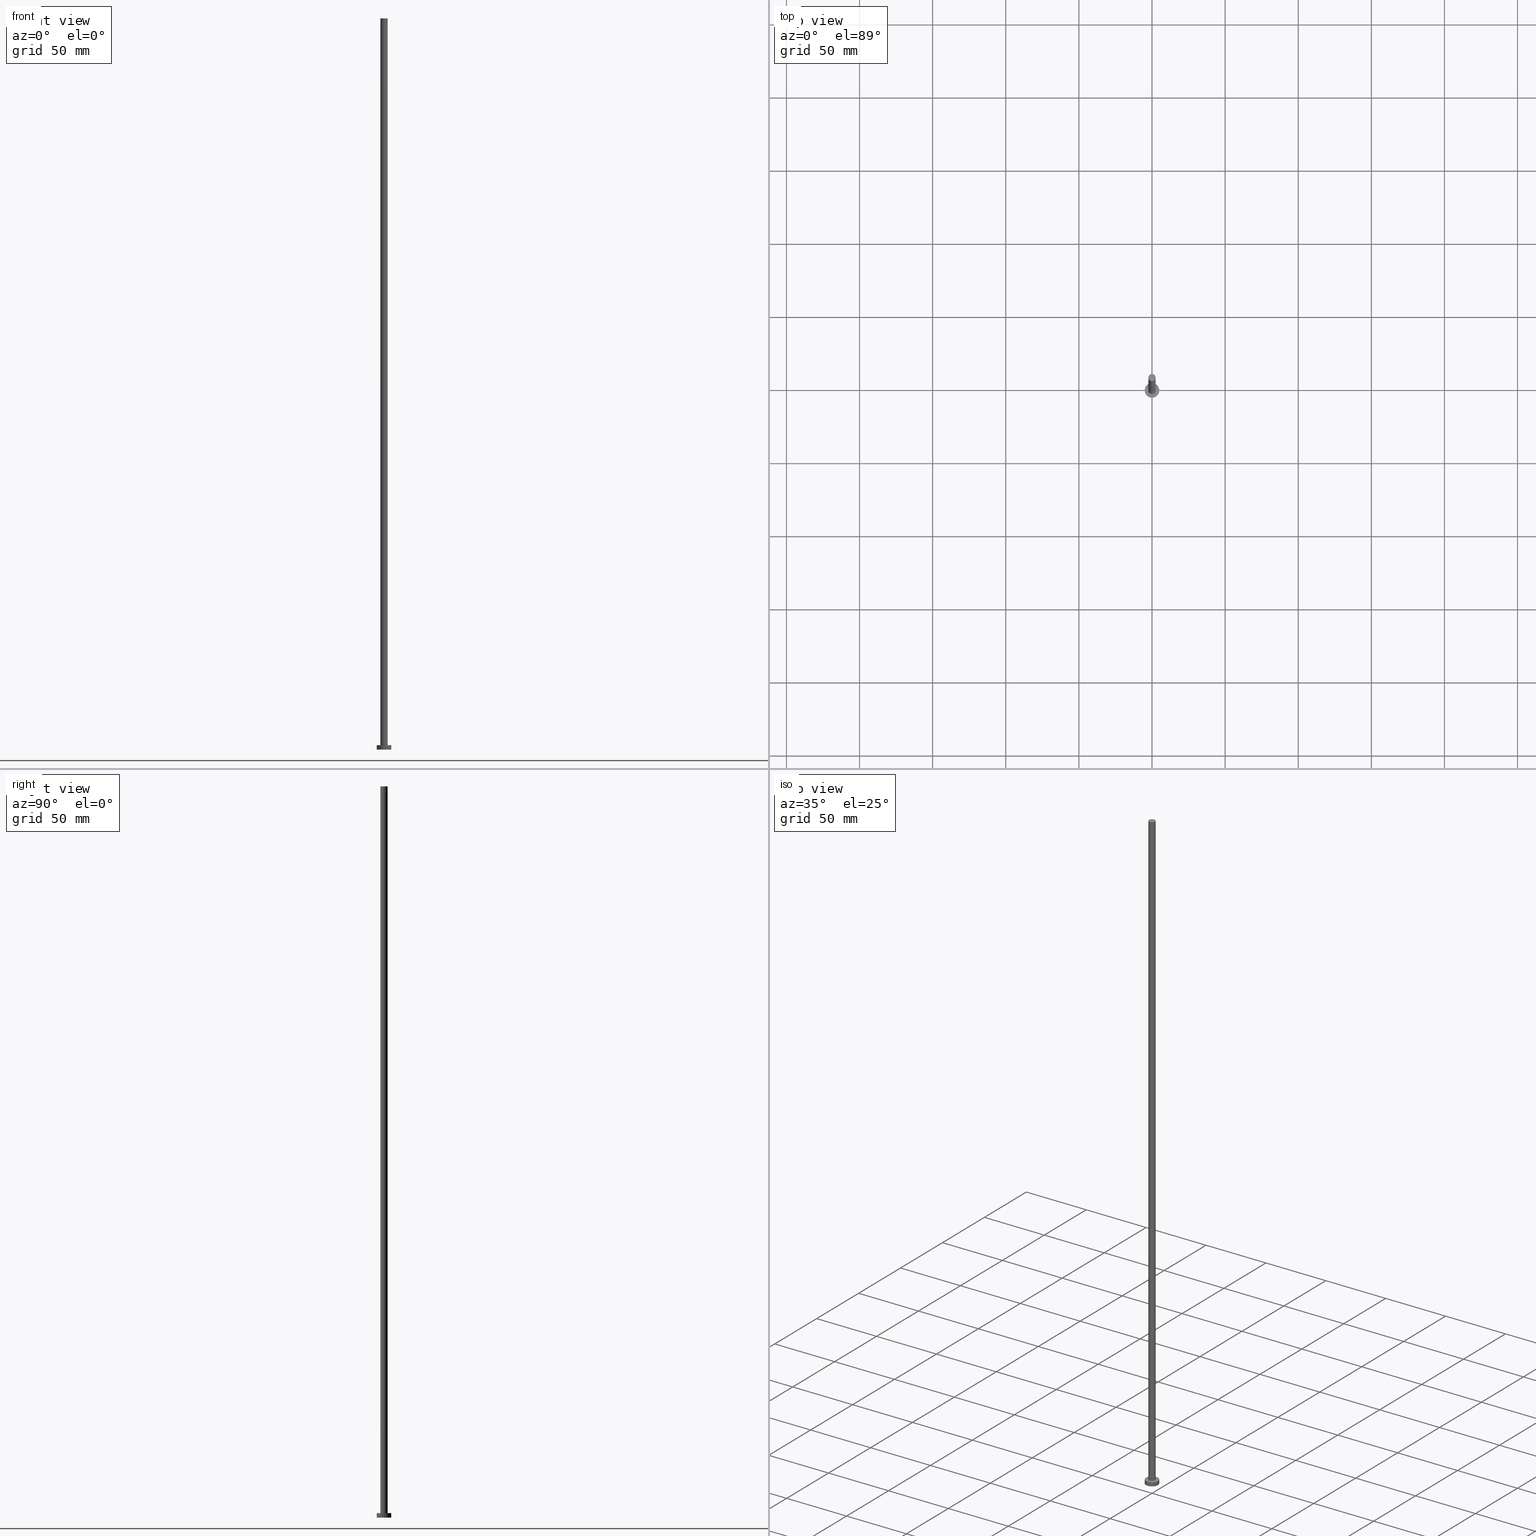
[diagram: canonical four-view strip — front | top / right | iso, engineering-drawing reading convention]
A machine part, canonical four-view strip (front | top / right | iso — engineering-drawing reading convention). The complete STEP part file that produces these views, byte-faithful:
ISO-10303-21;
HEADER;
FILE_DESCRIPTION (( 'STEP AP203' ),
    '1' );
FILE_NAME ('b8d8.STEP',
    '2023-02-12T12:29:18',
    ( '' ),
    ( '' ),
    'SwSTEP 2.0',
    'SolidWorks 2019',
    '' );
FILE_SCHEMA (( 'CONFIG_CONTROL_DESIGN' ));
ENDSEC;

DATA;
#1 = LOCAL_TIME ( 13, 29, 18.00000000000000000, #202 ) ;
#2 = ORIENTED_EDGE ( 'NONE', *, *, #69, .T. ) ;
#3 = CARTESIAN_POINT ( 'NONE',  ( 2.500000000000000000, 3.061616997868382648E-16, 3.000000000000000000 ) ) ;
#4 = CC_DESIGN_PERSON_AND_ORGANIZATION_ASSIGNMENT ( #14, #20, ( #76 ) ) ;
#5 = DIRECTION ( 'NONE',  ( -0.000000000000000000, -0.000000000000000000, -1.000000000000000000 ) ) ;
#6 = COORDINATED_UNIVERSAL_TIME_OFFSET ( 1, 0, .AHEAD. ) ;
#7 = DIRECTION ( 'NONE',  ( -0.000000000000000000, -0.000000000000000000, -1.000000000000000000 ) ) ;
#8 = PERSON_AND_ORGANIZATION_ROLE ( 'creator' ) ;
#9 = CARTESIAN_POINT ( 'NONE',  ( 0.000000000000000000, 0.000000000000000000, 0.000000000000000000 ) ) ;
#10 = CIRCLE ( 'NONE', #118, 2.500000000000000000 ) ;
#11 = ORIENTED_EDGE ( 'NONE', *, *, #43, .T. ) ;
#12 = LOCAL_TIME ( 13, 29, 18.00000000000000000, #221 ) ;
#13 = EDGE_CURVE ( 'NONE', #55, #82, #72, .T. ) ;
#14 = PERSON_AND_ORGANIZATION ( #165, #77 ) ;
#15 = DIRECTION ( 'NONE',  ( 1.000000000000000000, 0.000000000000000000, 0.000000000000000000 ) ) ;
#16 = APPLICATION_PROTOCOL_DEFINITION ( 'international standard', 'config_control_design', 1994, #84 ) ;
#17 = ADVANCED_FACE ( 'NONE', ( #157 ), #120, .T. ) ;
#18 = PRODUCT_DEFINITION_SHAPE ( 'NONE', 'NONE',  #45 ) ;
#19 = CARTESIAN_POINT ( 'NONE',  ( 0.000000000000000000, 0.000000000000000000, 3.000000000000000000 ) ) ;
#20 = PERSON_AND_ORGANIZATION_ROLE ( 'design_owner' ) ;
#21 = CARTESIAN_POINT ( 'NONE',  ( 0.000000000000000000, 0.000000000000000000, 3.000000000000000000 ) ) ;
#22 = APPROVAL_PERSON_ORGANIZATION ( #50, #249, #26 ) ;
#23 = EDGE_CURVE ( 'NONE', #83, #245, #62, .T. ) ;
#24 = ORIENTED_EDGE ( 'NONE', *, *, #69, .F. ) ;
#25 = CARTESIAN_POINT ( 'NONE',  ( -2.500000000000000000, 0.000000000000000000, 500.0000000000000000 ) ) ;
#26 = APPROVAL_ROLE ( '' ) ;
#27 = LINE ( 'NONE', #182, #195 ) ;
#28 = DIRECTION ( 'NONE',  ( 0.000000000000000000, 0.000000000000000000, 1.000000000000000000 ) ) ;
#29 = MANIFOLD_SOLID_BREP ( 'P�idat vysunut�m3', #155 ) ;
#30 = PERSON_AND_ORGANIZATION ( #165, #77 ) ;
#31 = DESIGN_CONTEXT ( 'detailed design', #107, 'design' ) ;
#32 = PERSON_AND_ORGANIZATION_ROLE ( 'classification_officer' ) ;
#33 = EDGE_CURVE ( 'NONE', #143, #67, #10, .T. ) ;
#34 = ORIENTED_EDGE ( 'NONE', *, *, #151, .F. ) ;
#35 = DIRECTION ( 'NONE',  ( 1.000000000000000000, 0.000000000000000000, 0.000000000000000000 ) ) ;
#36 = ORIENTED_EDGE ( 'NONE', *, *, #23, .F. ) ;
#37 = ADVANCED_FACE ( 'NONE', ( #226 ), #57, .T. ) ;
#38 = CARTESIAN_POINT ( 'NONE',  ( 0.000000000000000000, 0.000000000000000000, 500.0000000000000000 ) ) ;
#39 = EDGE_LOOP ( 'NONE', ( #207, #196, #229, #11 ) ) ;
#40 = DIRECTION ( 'NONE',  ( 0.000000000000000000, 0.000000000000000000, 1.000000000000000000 ) ) ;
#41 = CYLINDRICAL_SURFACE ( 'NONE', #133, 2.500000000000000000 ) ;
#42 = CARTESIAN_POINT ( 'NONE',  ( 0.000000000000000000, 0.000000000000000000, 500.0000000000000000 ) ) ;
#43 = EDGE_CURVE ( 'NONE', #245, #83, #88, .T. ) ;
#44 = AXIS2_PLACEMENT_3D ( 'NONE', #166, #185, #241 ) ;
#45 = PRODUCT_DEFINITION ( 'NEZN�M�', '', #225, #31 ) ;
#46 = CIRCLE ( 'NONE', #228, 2.500000000000000000 ) ;
#47 = EDGE_LOOP ( 'NONE', ( #179, #215 ) ) ;
#48 = AXIS2_PLACEMENT_3D ( 'NONE', #9, #205, #198 ) ;
#49 = DATE_AND_TIME ( #206, #12 ) ;
#50 = PERSON_AND_ORGANIZATION ( #165, #77 ) ;
#51 = DIRECTION ( 'NONE',  ( 0.000000000000000000, 0.000000000000000000, 1.000000000000000000 ) ) ;
#52 = CARTESIAN_POINT ( 'NONE',  ( 0.000000000000000000, 0.000000000000000000, 3.000000000000000000 ) ) ;
#53 = DIRECTION ( 'NONE',  ( 1.000000000000000000, 0.000000000000000000, 0.000000000000000000 ) ) ;
#54 = CC_DESIGN_PERSON_AND_ORGANIZATION_ASSIGNMENT ( #156, #32, ( #113 ) ) ;
#55 = VERTEX_POINT ( 'NONE', #254 ) ;
#56 = DIRECTION ( 'NONE',  ( -0.000000000000000000, -0.000000000000000000, -1.000000000000000000 ) ) ;
#57 = CYLINDRICAL_SURFACE ( 'NONE', #213, 5.000000000000000000 ) ;
#58 = VERTEX_POINT ( 'NONE', #79 ) ;
#59 = DIRECTION ( 'NONE',  ( 1.000000000000000000, 0.000000000000000000, 0.000000000000000000 ) ) ;
#60 = CARTESIAN_POINT ( 'NONE',  ( -5.000000000000000000, 0.000000000000000000, 3.000000000000000000 ) ) ;
#61 = PRODUCT_RELATED_PRODUCT_CATEGORY ( 'detail', '', ( #76 ) ) ;
#62 = CIRCLE ( 'NONE', #132, 2.500000000000000000 ) ;
#63 = CIRCLE ( 'NONE', #240, 5.000000000000000000 ) ;
#64 = EDGE_CURVE ( 'NONE', #122, #58, #250, .T. ) ;
#65 = APPROVAL ( #111, 'NEUR�EN�' ) ;
#66 = VECTOR ( 'NONE', #7, 1000.000000000000000 ) ;
#67 = VERTEX_POINT ( 'NONE', #25 ) ;
#68 = AXIS2_PLACEMENT_3D ( 'NONE', #52, #5, #183 ) ;
#69 = EDGE_CURVE ( 'NONE', #82, #55, #63, .T. ) ;
#70 = PERSON_AND_ORGANIZATION_ROLE ( 'design_supplier' ) ;
#71 = DIRECTION ( 'NONE',  ( -0.000000000000000000, -0.000000000000000000, -1.000000000000000000 ) ) ;
#72 = CIRCLE ( 'NONE', #173, 5.000000000000000000 ) ;
#73 = CARTESIAN_POINT ( 'NONE',  ( 0.000000000000000000, 0.000000000000000000, 3.000000000000000000 ) ) ;
#74 = DIRECTION ( 'NONE',  ( 0.000000000000000000, 0.000000000000000000, 1.000000000000000000 ) ) ;
#75 = DIRECTION ( 'NONE',  ( -1.000000000000000000, 0.000000000000000000, 0.000000000000000000 ) ) ;
#76 = PRODUCT ( 'b8d8', 'b8d8', '', ( #248 ) ) ;
#77 = ORGANIZATION ( 'NEUR�EN�', 'NEUR�EN�', '' ) ;
#78 = PERSON_AND_ORGANIZATION ( #165, #77 ) ;
#79 = CARTESIAN_POINT ( 'NONE',  ( 5.000000000000000000, 6.123233995736766282E-16, 0.000000000000000000 ) ) ;
#80 = CARTESIAN_POINT ( 'NONE',  ( 0.000000000000000000, 0.000000000000000000, 0.000000000000000000 ) ) ;
#81 = LOCAL_TIME ( 13, 29, 18.00000000000000000, #6 ) ;
#82 = VERTEX_POINT ( 'NONE', #203 ) ;
#83 = VERTEX_POINT ( 'NONE', #3 ) ;
#84 = APPLICATION_CONTEXT ( 'configuration controlled 3d designs of mechanical parts and assemblies' ) ;
#85 = ADVANCED_FACE ( 'NONE', ( #237 ), #109, .T. ) ;
#86 = CALENDAR_DATE ( 2023, 12, 2 ) ;
#87 = FACE_OUTER_BOUND ( 'NONE', #189, .T. ) ;
#88 = CIRCLE ( 'NONE', #105, 2.500000000000000000 ) ;
#89 = CIRCLE ( 'NONE', #167, 5.000000000000000000 ) ;
#90 = PERSON_AND_ORGANIZATION ( #165, #77 ) ;
#91 = CARTESIAN_POINT ( 'NONE',  ( 0.000000000000000000, 0.000000000000000000, 3.000000000000000000 ) ) ;
#92 = APPROVAL_STATUS ( 'not_yet_approved' ) ;
#93 = PLANE ( 'NONE',  #197 ) ;
#94 = CC_DESIGN_APPROVAL ( #201, ( #45 ) ) ;
#95 = ORIENTED_EDGE ( 'NONE', *, *, #33, .F. ) ;
#96 = PLANE ( 'NONE',  #145 ) ;
#97 = DIRECTION ( 'NONE',  ( 1.000000000000000000, 0.000000000000000000, 0.000000000000000000 ) ) ;
#98 = DIRECTION ( 'NONE',  ( 0.000000000000000000, 0.000000000000000000, 1.000000000000000000 ) ) ;
#99 = ADVANCED_FACE ( 'NONE', ( #87 ), #115, .T. ) ;
#100 = DIRECTION ( 'NONE',  ( -0.000000000000000000, -0.000000000000000000, -1.000000000000000000 ) ) ;
#101 = APPLICATION_PROTOCOL_DEFINITION ( 'international standard', 'config_control_design', 1994, #107 ) ;
#102 = DIRECTION ( 'NONE',  ( 0.000000000000000000, 0.000000000000000000, 1.000000000000000000 ) ) ;
#103 = APPROVAL_ROLE ( '' ) ;
#104 = UNCERTAINTY_MEASURE_WITH_UNIT (LENGTH_MEASURE( 1.000000000000000082E-05 ), #128, 'distance_accuracy_value', 'NONE');
#105 = AXIS2_PLACEMENT_3D ( 'NONE', #21, #102, #177 ) ;
#106 = ORIENTED_EDGE ( 'NONE', *, *, #43, .F. ) ;
#107 = APPLICATION_CONTEXT ( 'configuration controlled 3d designs of mechanical parts and assemblies' ) ;
#108 = ORIENTED_EDGE ( 'NONE', *, *, #216, .T. ) ;
#109 = CYLINDRICAL_SURFACE ( 'NONE', #68, 5.000000000000000000 ) ;
#110 = CC_DESIGN_PERSON_AND_ORGANIZATION_ASSIGNMENT ( #204, #184, ( #225 ) ) ;
#111 = APPROVAL_STATUS ( 'not_yet_approved' ) ;
#112 = APPROVAL_PERSON_ORGANIZATION ( #78, #201, #103 ) ;
#113 = SECURITY_CLASSIFICATION ( '', '', #168 ) ;
#114 = APPROVAL_DATE_TIME ( #242, #249 ) ;
#115 = PLANE ( 'NONE',  #44 ) ;
#116 = ORIENTED_EDGE ( 'NONE', *, *, #13, .T. ) ;
#117 = DIRECTION ( 'NONE',  ( 1.000000000000000000, 0.000000000000000000, 0.000000000000000000 ) ) ;
#118 = AXIS2_PLACEMENT_3D ( 'NONE', #247, #158, #15 ) ;
#119 = VECTOR ( 'NONE', #56, 1000.000000000000000 ) ;
#120 = CYLINDRICAL_SURFACE ( 'NONE', #232, 2.500000000000000000 ) ;
#121 = ADVANCED_FACE ( 'NONE', ( #152 ), #93, .F. ) ;
#122 = VERTEX_POINT ( 'NONE', #219 ) ;
#123 = DIRECTION ( 'NONE',  ( -0.000000000000000000, -0.000000000000000000, -1.000000000000000000 ) ) ;
#124 = CC_DESIGN_DATE_AND_TIME_ASSIGNMENT ( #218, #171, ( #113 ) ) ;
#125 = CARTESIAN_POINT ( 'NONE',  ( 0.000000000000000000, 0.000000000000000000, 3.000000000000000000 ) ) ;
#126 = CALENDAR_DATE ( 2023, 12, 2 ) ;
#127 = ADVANCED_BREP_SHAPE_REPRESENTATION ( 'b8d8', ( #29, #235 ), #233 ) ;
#128 =( LENGTH_UNIT ( ) NAMED_UNIT ( * ) SI_UNIT ( .MILLI., .METRE. ) );
#129 = LOCAL_TIME ( 13, 29, 18.00000000000000000, #149 ) ;
#130 = VECTOR ( 'NONE', #230, 1000.000000000000000 ) ;
#131 = ORIENTED_EDGE ( 'NONE', *, *, #13, .F. ) ;
#132 = AXIS2_PLACEMENT_3D ( 'NONE', #19, #188, #97 ) ;
#133 = AXIS2_PLACEMENT_3D ( 'NONE', #38, #123, #175 ) ;
#134 = ORIENTED_EDGE ( 'NONE', *, *, #236, .T. ) ;
#135 = SHAPE_DEFINITION_REPRESENTATION ( #18, #127 ) ;
#136 = CARTESIAN_POINT ( 'NONE',  ( 2.500000000000000000, 3.061616997868382648E-16, 500.0000000000000000 ) ) ;
#137 = APPROVAL_DATE_TIME ( #49, #65 ) ;
#138 = CALENDAR_DATE ( 2023, 12, 2 ) ;
#139 = PERSON_AND_ORGANIZATION ( #165, #77 ) ;
#140 = CARTESIAN_POINT ( 'NONE',  ( 0.000000000000000000, 0.000000000000000000, 0.000000000000000000 ) ) ;
#141 = LINE ( 'NONE', #60, #130 ) ;
#142 = EDGE_CURVE ( 'NONE', #143, #83, #243, .T. ) ;
#143 = VERTEX_POINT ( 'NONE', #200 ) ;
#144 = FACE_BOUND ( 'NONE', #174, .T. ) ;
#145 = AXIS2_PLACEMENT_3D ( 'NONE', #231, #150, #252 ) ;
#146 = ORIENTED_EDGE ( 'NONE', *, *, #151, .T. ) ;
#147 = DIRECTION ( 'NONE',  ( 0.000000000000000000, 0.000000000000000000, 1.000000000000000000 ) ) ;
#148 = DIRECTION ( 'NONE',  ( 1.000000000000000000, 0.000000000000000000, 0.000000000000000000 ) ) ;
#149 = COORDINATED_UNIVERSAL_TIME_OFFSET ( 1, 0, .AHEAD. ) ;
#150 = DIRECTION ( 'NONE',  ( 0.000000000000000000, 0.000000000000000000, 1.000000000000000000 ) ) ;
#151 = EDGE_CURVE ( 'NONE', #55, #58, #27, .T. ) ;
#152 = FACE_OUTER_BOUND ( 'NONE', #47, .T. ) ;
#153 = APPROVAL_ROLE ( '' ) ;
#154 = APPROVAL_DATE_TIME ( #192, #201 ) ;
#155 = CLOSED_SHELL ( 'NONE', ( #17, #85, #37, #193, #121, #246, #99 ) ) ;
#156 = PERSON_AND_ORGANIZATION ( #165, #77 ) ;
#157 = FACE_OUTER_BOUND ( 'NONE', #159, .T. ) ;
#158 = DIRECTION ( 'NONE',  ( 0.000000000000000000, 0.000000000000000000, 1.000000000000000000 ) ) ;
#159 = EDGE_LOOP ( 'NONE', ( #95, #186, #209, #161 ) ) ;
#160 = DIRECTION ( 'NONE',  ( -1.000000000000000000, 0.000000000000000000, 0.000000000000000000 ) ) ;
#161 = ORIENTED_EDGE ( 'NONE', *, *, #162, .F. ) ;
#162 = EDGE_CURVE ( 'NONE', #67, #245, #172, .T. ) ;
#163 = CC_DESIGN_PERSON_AND_ORGANIZATION_ASSIGNMENT ( #30, #70, ( #225 ) ) ;
#164 = ORIENTED_EDGE ( 'NONE', *, *, #216, .F. ) ;
#165 = PERSON ( 'NEUR�EN�', 'NEUR�EN�', 'NEUR�EN�', ('NEUR�EN�'), ('NEUR�EN�'), ('NEUR�EN�') ) ;
#166 = CARTESIAN_POINT ( 'NONE',  ( 0.000000000000000000, 0.000000000000000000, 500.0000000000000000 ) ) ;
#167 = AXIS2_PLACEMENT_3D ( 'NONE', #212, #40, #59 ) ;
#168 = SECURITY_CLASSIFICATION_LEVEL ( 'unclassified' ) ;
#169 = DATE_TIME_ROLE ( 'creation_date' ) ;
#170 = DIRECTION ( 'NONE',  ( 1.000000000000000000, 0.000000000000000000, -0.000000000000000000 ) ) ;
#171 = DATE_TIME_ROLE ( 'classification_date' ) ;
#172 = LINE ( 'NONE', #244, #119 ) ;
#173 = AXIS2_PLACEMENT_3D ( 'NONE', #73, #74, #148 ) ;
#174 = EDGE_LOOP ( 'NONE', ( #106, #36 ) ) ;
#175 = DIRECTION ( 'NONE',  ( -1.000000000000000000, 0.000000000000000000, 0.000000000000000000 ) ) ;
#176 = EDGE_LOOP ( 'NONE', ( #2, #116 ) ) ;
#177 = DIRECTION ( 'NONE',  ( 1.000000000000000000, 0.000000000000000000, 0.000000000000000000 ) ) ;
#178 = ORIENTED_EDGE ( 'NONE', *, *, #199, .T. ) ;
#179 = ORIENTED_EDGE ( 'NONE', *, *, #64, .F. ) ;
#180 = ORIENTED_EDGE ( 'NONE', *, *, #64, .T. ) ;
#181 = DATE_AND_TIME ( #138, #187 ) ;
#182 = CARTESIAN_POINT ( 'NONE',  ( 5.000000000000000000, 6.123233995736766282E-16, 3.000000000000000000 ) ) ;
#183 = DIRECTION ( 'NONE',  ( -1.000000000000000000, 0.000000000000000000, 0.000000000000000000 ) ) ;
#184 = PERSON_AND_ORGANIZATION_ROLE ( 'creator' ) ;
#185 = DIRECTION ( 'NONE',  ( 0.000000000000000000, 0.000000000000000000, 1.000000000000000000 ) ) ;
#186 = ORIENTED_EDGE ( 'NONE', *, *, #142, .T. ) ;
#187 = LOCAL_TIME ( 13, 29, 18.00000000000000000, #239 ) ;
#188 = DIRECTION ( 'NONE',  ( 0.000000000000000000, 0.000000000000000000, 1.000000000000000000 ) ) ;
#189 = EDGE_LOOP ( 'NONE', ( #134, #191 ) ) ;
#190 =( NAMED_UNIT ( * ) SI_UNIT ( $, .STERADIAN. ) SOLID_ANGLE_UNIT ( ) );
#191 = ORIENTED_EDGE ( 'NONE', *, *, #33, .T. ) ;
#192 = DATE_AND_TIME ( #126, #129 ) ;
#193 = ADVANCED_FACE ( 'NONE', ( #144, #208 ), #96, .T. ) ;
#194 = CC_DESIGN_APPROVAL ( #65, ( #113 ) ) ;
#195 = VECTOR ( 'NONE', #71, 1000.000000000000000 ) ;
#196 = ORIENTED_EDGE ( 'NONE', *, *, #236, .F. ) ;
#197 = AXIS2_PLACEMENT_3D ( 'NONE', #140, #28, #170 ) ;
#198 = DIRECTION ( 'NONE',  ( 1.000000000000000000, 0.000000000000000000, 0.000000000000000000 ) ) ;
#199 = EDGE_CURVE ( 'NONE', #58, #122, #89, .T. ) ;
#200 = CARTESIAN_POINT ( 'NONE',  ( 2.500000000000000000, 3.061616997868382648E-16, 500.0000000000000000 ) ) ;
#201 = APPROVAL ( #211, 'NEUR�EN�' ) ;
#202 = COORDINATED_UNIVERSAL_TIME_OFFSET ( 1, 0, .AHEAD. ) ;
#203 = CARTESIAN_POINT ( 'NONE',  ( -5.000000000000000000, 0.000000000000000000, 3.000000000000000000 ) ) ;
#204 = PERSON_AND_ORGANIZATION ( #165, #77 ) ;
#205 = DIRECTION ( 'NONE',  ( 0.000000000000000000, 0.000000000000000000, 1.000000000000000000 ) ) ;
#206 = CALENDAR_DATE ( 2023, 12, 2 ) ;
#207 = ORIENTED_EDGE ( 'NONE', *, *, #142, .F. ) ;
#208 = FACE_OUTER_BOUND ( 'NONE', #176, .T. ) ;
#209 = ORIENTED_EDGE ( 'NONE', *, *, #23, .T. ) ;
#210 = DIRECTION ( 'NONE',  ( -0.000000000000000000, -0.000000000000000000, -1.000000000000000000 ) ) ;
#211 = APPROVAL_STATUS ( 'not_yet_approved' ) ;
#212 = CARTESIAN_POINT ( 'NONE',  ( 0.000000000000000000, 0.000000000000000000, 0.000000000000000000 ) ) ;
#213 = AXIS2_PLACEMENT_3D ( 'NONE', #125, #100, #75 ) ;
#214 = CC_DESIGN_APPROVAL ( #249, ( #225 ) ) ;
#215 = ORIENTED_EDGE ( 'NONE', *, *, #199, .F. ) ;
#216 = EDGE_CURVE ( 'NONE', #82, #122, #141, .T. ) ;
#217 = APPROVAL_PERSON_ORGANIZATION ( #90, #65, #153 ) ;
#218 = DATE_AND_TIME ( #222, #81 ) ;
#219 = CARTESIAN_POINT ( 'NONE',  ( -5.000000000000000000, 0.000000000000000000, 0.000000000000000000 ) ) ;
#220 = CC_DESIGN_DATE_AND_TIME_ASSIGNMENT ( #181, #169, ( #45 ) ) ;
#221 = COORDINATED_UNIVERSAL_TIME_OFFSET ( 1, 0, .AHEAD. ) ;
#222 = CALENDAR_DATE ( 2023, 12, 2 ) ;
#223 = CARTESIAN_POINT ( 'NONE',  ( 0.000000000000000000, 0.000000000000000000, 500.0000000000000000 ) ) ;
#224 = FACE_OUTER_BOUND ( 'NONE', #39, .T. ) ;
#225 = PRODUCT_DEFINITION_FORMATION_WITH_SPECIFIED_SOURCE ( 'LIBOVOLN�', '', #76, .NOT_KNOWN. ) ;
#226 = FACE_OUTER_BOUND ( 'NONE', #251, .T. ) ;
#227 = CARTESIAN_POINT ( 'NONE',  ( -2.500000000000000000, 0.000000000000000000, 3.000000000000000000 ) ) ;
#228 = AXIS2_PLACEMENT_3D ( 'NONE', #42, #98, #117 ) ;
#229 = ORIENTED_EDGE ( 'NONE', *, *, #162, .T. ) ;
#230 = DIRECTION ( 'NONE',  ( -0.000000000000000000, -0.000000000000000000, -1.000000000000000000 ) ) ;
#231 = CARTESIAN_POINT ( 'NONE',  ( 0.000000000000000000, 0.000000000000000000, 3.000000000000000000 ) ) ;
#232 = AXIS2_PLACEMENT_3D ( 'NONE', #223, #210, #160 ) ;
#233 =( GEOMETRIC_REPRESENTATION_CONTEXT ( 3 ) GLOBAL_UNCERTAINTY_ASSIGNED_CONTEXT ( ( #104 ) ) GLOBAL_UNIT_ASSIGNED_CONTEXT ( ( #128, #255, #190 ) ) REPRESENTATION_CONTEXT ( 'NONE', 'WORKASPACE' ) );
#234 = EDGE_LOOP ( 'NONE', ( #131, #146, #178, #164 ) ) ;
#235 = AXIS2_PLACEMENT_3D ( 'NONE', #80, #147, #35 ) ;
#236 = EDGE_CURVE ( 'NONE', #67, #143, #46, .T. ) ;
#237 = FACE_OUTER_BOUND ( 'NONE', #234, .T. ) ;
#238 = CC_DESIGN_PERSON_AND_ORGANIZATION_ASSIGNMENT ( #139, #8, ( #45 ) ) ;
#239 = COORDINATED_UNIVERSAL_TIME_OFFSET ( 1, 0, .AHEAD. ) ;
#240 = AXIS2_PLACEMENT_3D ( 'NONE', #91, #51, #53 ) ;
#241 = DIRECTION ( 'NONE',  ( 1.000000000000000000, 0.000000000000000000, -0.000000000000000000 ) ) ;
#242 = DATE_AND_TIME ( #86, #1 ) ;
#243 = LINE ( 'NONE', #136, #66 ) ;
#244 = CARTESIAN_POINT ( 'NONE',  ( -2.500000000000000000, 0.000000000000000000, 500.0000000000000000 ) ) ;
#245 = VERTEX_POINT ( 'NONE', #227 ) ;
#246 = ADVANCED_FACE ( 'NONE', ( #224 ), #41, .T. ) ;
#247 = CARTESIAN_POINT ( 'NONE',  ( 0.000000000000000000, 0.000000000000000000, 500.0000000000000000 ) ) ;
#248 = MECHANICAL_CONTEXT ( 'NONE', #84, 'mechanical' ) ;
#249 = APPROVAL ( #92, 'NEUR�EN�' ) ;
#250 = CIRCLE ( 'NONE', #48, 5.000000000000000000 ) ;
#251 = EDGE_LOOP ( 'NONE', ( #34, #24, #108, #180 ) ) ;
#252 = DIRECTION ( 'NONE',  ( 1.000000000000000000, 0.000000000000000000, -0.000000000000000000 ) ) ;
#253 = CC_DESIGN_SECURITY_CLASSIFICATION ( #113, ( #225 ) ) ;
#254 = CARTESIAN_POINT ( 'NONE',  ( 5.000000000000000000, 6.123233995736766282E-16, 3.000000000000000000 ) ) ;
#255 =( NAMED_UNIT ( * ) PLANE_ANGLE_UNIT ( ) SI_UNIT ( $, .RADIAN. ) );
ENDSEC;
END-ISO-10303-21;
